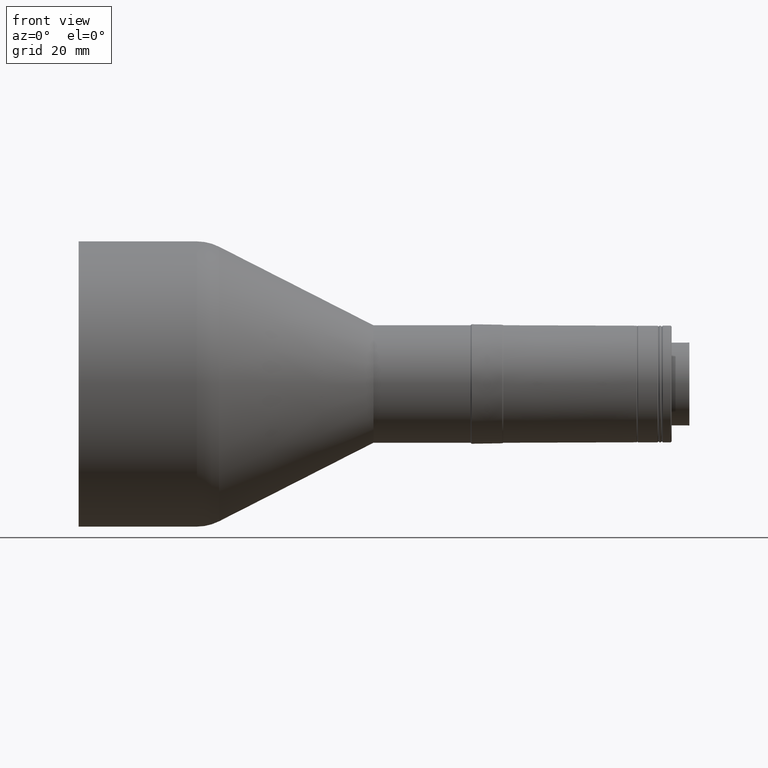
[diagram: clean part render]
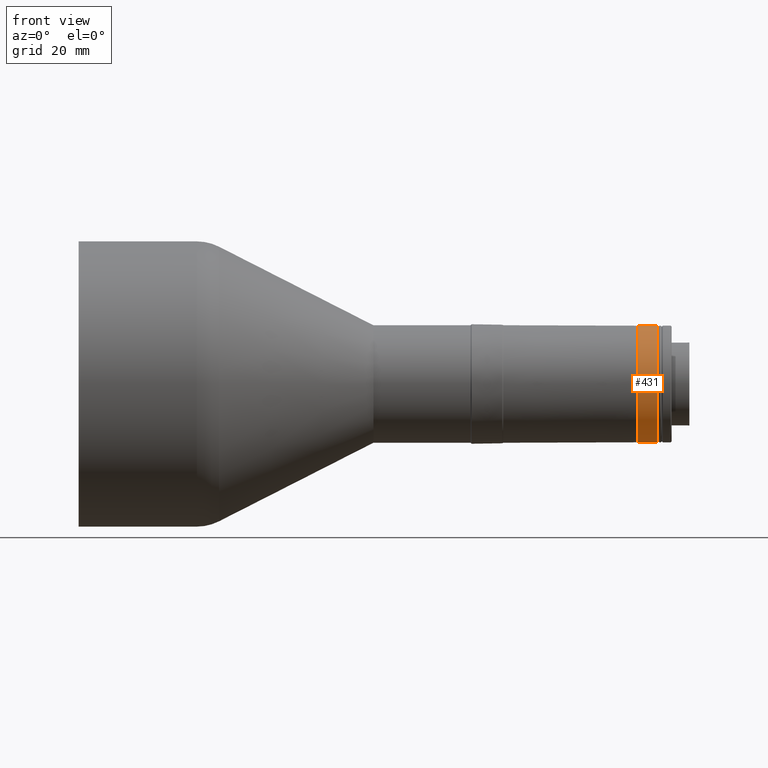
[diagram: same view with one face highlighted and labeled with its STEP entity id]
A machine part, front view. The second image highlights one B-rep face of the part: STEP entity #431.
In plain terms, the highlighted cylindrical surface (partial cylindrical patch) has radius 17.8684 mm, axis along (-1, -0, -0).
Its self-contained STEP definition (entity closure, byte-faithful):
#8 = AXIS2_PLACEMENT_3D ( 'NONE', #116, #1899, #466 ) ;
#77 = AXIS2_PLACEMENT_3D ( 'NONE', #1371, #2276, #112 ) ;
#112 = DIRECTION ( 'NONE',  ( 0.0000000000000000000, 0.0000000000000000000, 1.000000000000000000 ) ) ;
#116 = CARTESIAN_POINT ( 'NONE',  ( -41.80689966640019200, 0.0000000000000000000, -164.1109999999999900 ) ) ;
#196 = EDGE_CURVE ( 'NONE', #560, #373, #527, .T. ) ;
#373 = VERTEX_POINT ( 'NONE', #1000 ) ;
#413 = DIRECTION ( 'NONE',  ( -1.000000000000000000, -0.0000000000000000000, -0.0000000000000000000 ) ) ;
#431 = ADVANCED_FACE ( 'NONE', ( #1958 ), #780, .T. ) ;
#462 = CARTESIAN_POINT ( 'NONE',  ( 147.3577700458608000, 2.188249281921042900E-015, -181.9794113937552100 ) ) ;
#466 = DIRECTION ( 'NONE',  ( 0.0000000000000000000, 0.0000000000000000000, 1.000000000000000000 ) ) ;
#527 = LINE ( 'NONE', #1815, #1404 ) ;
#560 = VERTEX_POINT ( 'NONE', #1943 ) ;
#598 = ORIENTED_EDGE ( 'NONE', *, *, #1549, .T. ) ;
#736 = CIRCLE ( 'NONE', #2304, 17.86841139375522400 ) ;
#753 = DIRECTION ( 'NONE',  ( -1.000000000000000000, -0.0000000000000000000, -0.0000000000000000000 ) ) ;
#780 = CYLINDRICAL_SURFACE ( 'NONE', #8, 17.86841139375522400 ) ;
#1000 = CARTESIAN_POINT ( 'NONE',  ( 147.3577700458608000, 0.0000000000000000000, -146.2425886062447700 ) ) ;
#1204 = VERTEX_POINT ( 'NONE', #1219 ) ;
#1219 = CARTESIAN_POINT ( 'NONE',  ( 153.3577700459079800, 2.188249281921042900E-015, -181.9794113937552100 ) ) ;
#1300 = LINE ( 'NONE', #1513, #2270 ) ;
#1317 = ORIENTED_EDGE ( 'NONE', *, *, #1481, .F. ) ;
#1371 = CARTESIAN_POINT ( 'NONE',  ( 153.3577700459079800, 0.0000000000000000000, -164.1109999999999900 ) ) ;
#1404 = VECTOR ( 'NONE', #2208, 1000.000000000000000 ) ;
#1427 = ORIENTED_EDGE ( 'NONE', *, *, #196, .T. ) ;
#1448 = CIRCLE ( 'NONE', #77, 17.86841139375522400 ) ;
#1481 = EDGE_CURVE ( 'NONE', #1604, #373, #736, .T. ) ;
#1507 = EDGE_CURVE ( 'NONE', #1204, #1604, #1300, .T. ) ;
#1513 = CARTESIAN_POINT ( 'NONE',  ( -41.80689966640019200, 2.188249281921042900E-015, -181.9794113937552100 ) ) ;
#1549 = EDGE_CURVE ( 'NONE', #1204, #560, #1448, .T. ) ;
#1604 = VERTEX_POINT ( 'NONE', #462 ) ;
#1686 = DIRECTION ( 'NONE',  ( 0.0000000000000000000, 0.0000000000000000000, 1.000000000000000000 ) ) ;
#1763 = ORIENTED_EDGE ( 'NONE', *, *, #1507, .F. ) ;
#1772 = EDGE_LOOP ( 'NONE', ( #1763, #598, #1427, #1317 ) ) ;
#1815 = CARTESIAN_POINT ( 'NONE',  ( -41.80689966640019200, 0.0000000000000000000, -146.2425886062447700 ) ) ;
#1899 = DIRECTION ( 'NONE',  ( -1.000000000000000000, -0.0000000000000000000, -0.0000000000000000000 ) ) ;
#1943 = CARTESIAN_POINT ( 'NONE',  ( 153.3577700459079800, 0.0000000000000000000, -146.2425886062447700 ) ) ;
#1958 = FACE_OUTER_BOUND ( 'NONE', #1772, .T. ) ;
#2208 = DIRECTION ( 'NONE',  ( -1.000000000000000000, -0.0000000000000000000, -0.0000000000000000000 ) ) ;
#2213 = CARTESIAN_POINT ( 'NONE',  ( 147.3577700458608000, 0.0000000000000000000, -164.1109999999999900 ) ) ;
#2270 = VECTOR ( 'NONE', #753, 1000.000000000000000 ) ;
#2276 = DIRECTION ( 'NONE',  ( -1.000000000000000000, -0.0000000000000000000, -0.0000000000000000000 ) ) ;
#2304 = AXIS2_PLACEMENT_3D ( 'NONE', #2213, #413, #1686 ) ;